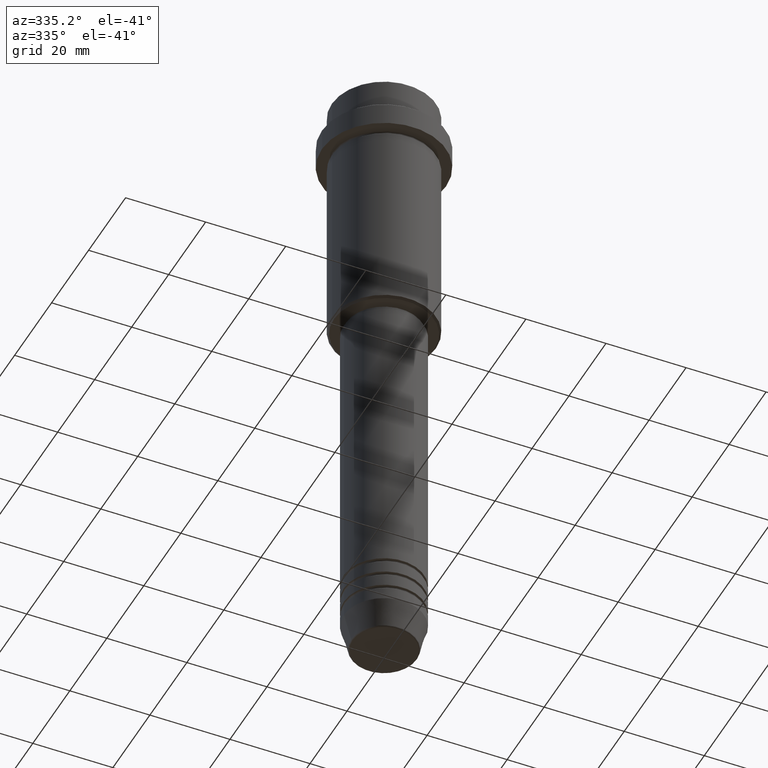
[diagram: clean part render]
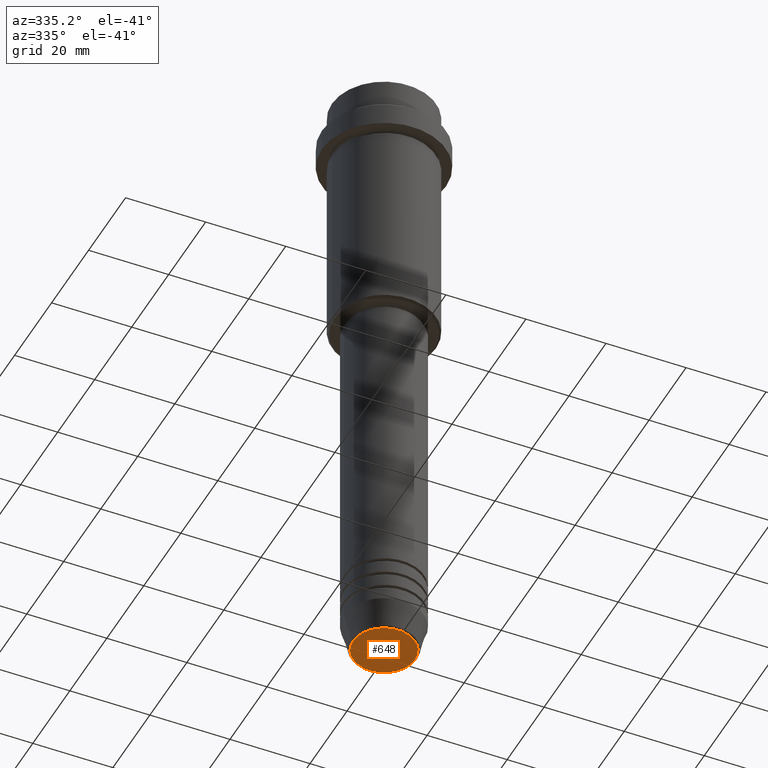
[diagram: same view with one face highlighted and labeled with its STEP entity id]
A machine part, auxiliary view. The second image highlights one B-rep face of the part: STEP entity #648.
In plain terms, the highlighted planar face has unit normal (0, -0, 1).
Its self-contained STEP definition (entity closure, byte-faithful):
#24 = CARTESIAN_POINT ( 'NONE',  ( 0.000000000000000000, 0.000000000000000000, -160.0000000000000000 ) ) ;
#35 = AXIS2_PLACEMENT_3D ( 'NONE', #24, #903, #457 ) ;
#216 = DIRECTION ( 'NONE',  ( 0.000000000000000000, -0.000000000000000000, 1.000000000000000000 ) ) ;
#268 = ORIENTED_EDGE ( 'NONE', *, *, #1065, .T. ) ;
#332 = CIRCLE ( 'NONE', #35, 7.740692158992656502 ) ;
#405 = CARTESIAN_POINT ( 'NONE',  ( 7.740692158992656502, 0.000000000000000000, -160.0000000000000000 ) ) ;
#441 = VERTEX_POINT ( 'NONE', #405 ) ;
#457 = DIRECTION ( 'NONE',  ( 1.000000000000000000, 0.000000000000000000, 0.000000000000000000 ) ) ;
#542 = CARTESIAN_POINT ( 'NONE',  ( 0.000000000000000000, 0.000000000000000000, -160.0000000000000000 ) ) ;
#566 = AXIS2_PLACEMENT_3D ( 'NONE', #668, #216, #675 ) ;
#642 = CARTESIAN_POINT ( 'NONE',  ( -7.740692158992656502, 9.775343368540041107E-16, -160.0000000000000000 ) ) ;
#644 = EDGE_LOOP ( 'NONE', ( #268, #749 ) ) ;
#648 = ADVANCED_FACE ( 'NONE', ( #751 ), #1304, .F. ) ;
#656 = CIRCLE ( 'NONE', #1004, 7.740692158992656502 ) ;
#668 = CARTESIAN_POINT ( 'NONE',  ( 0.000000000000000000, 0.000000000000000000, -160.0000000000000000 ) ) ;
#673 = VERTEX_POINT ( 'NONE', #642 ) ;
#675 = DIRECTION ( 'NONE',  ( 1.000000000000000000, 0.000000000000000000, 0.000000000000000000 ) ) ;
#749 = ORIENTED_EDGE ( 'NONE', *, *, #966, .T. ) ;
#751 = FACE_OUTER_BOUND ( 'NONE', #644, .T. ) ;
#903 = DIRECTION ( 'NONE',  ( 0.000000000000000000, 0.000000000000000000, -1.000000000000000000 ) ) ;
#966 = EDGE_CURVE ( 'NONE', #673, #441, #656, .T. ) ;
#1004 = AXIS2_PLACEMENT_3D ( 'NONE', #542, #1286, #1280 ) ;
#1065 = EDGE_CURVE ( 'NONE', #441, #673, #332, .T. ) ;
#1280 = DIRECTION ( 'NONE',  ( 1.000000000000000000, 0.000000000000000000, 0.000000000000000000 ) ) ;
#1286 = DIRECTION ( 'NONE',  ( 0.000000000000000000, 0.000000000000000000, -1.000000000000000000 ) ) ;
#1304 = PLANE ( 'NONE',  #566 ) ;